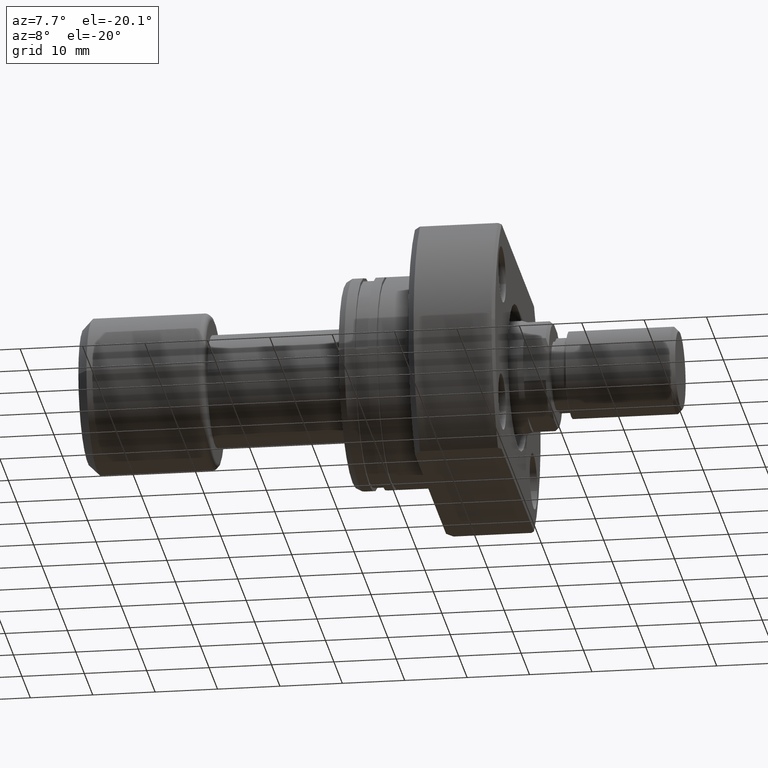
[diagram: clean part render]
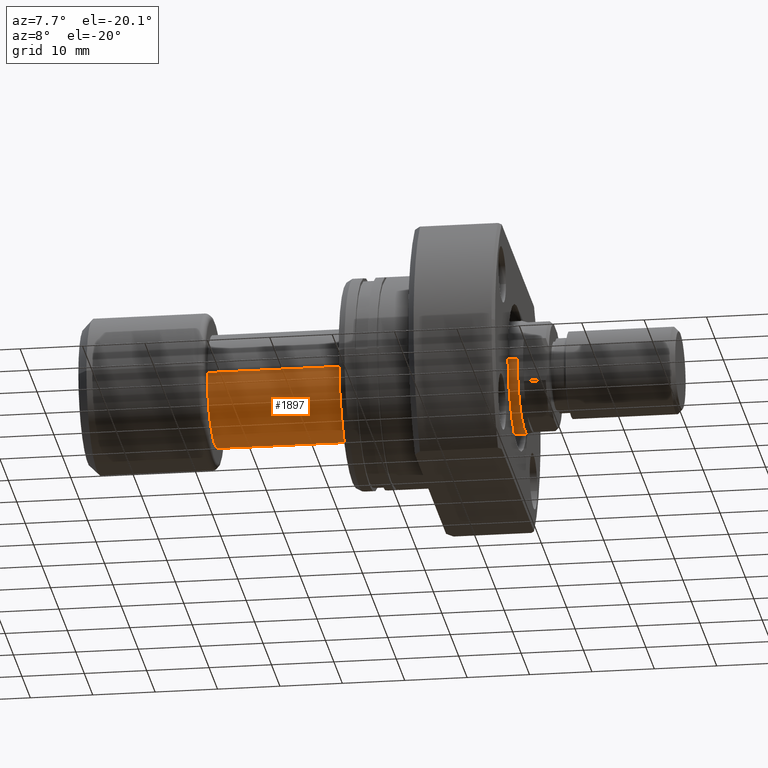
[diagram: same view with one face highlighted and labeled with its STEP entity id]
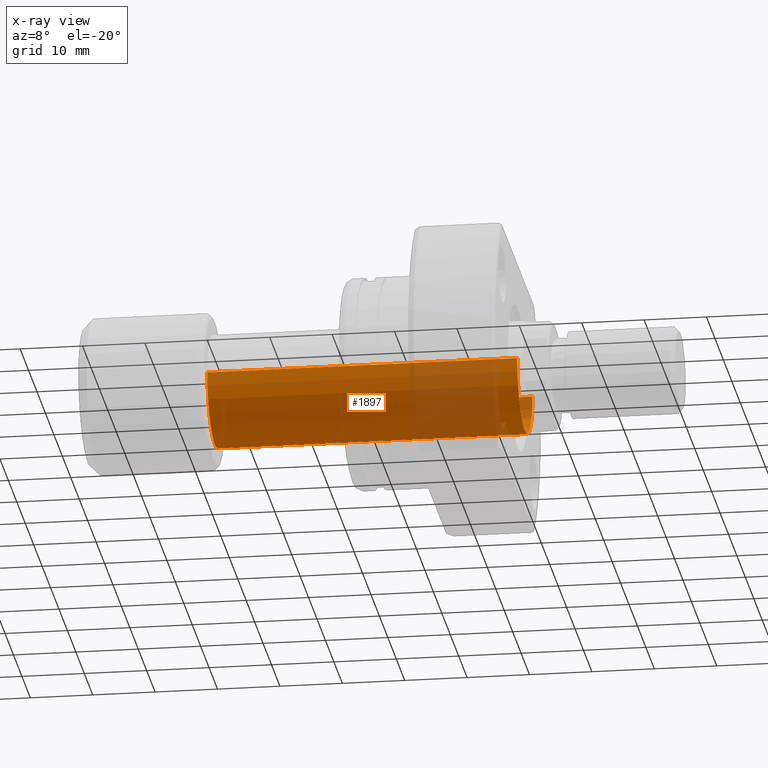
[diagram: x-ray of the same camera — body ghosted, the highlighted face saturated]
A machine part, auxiliary view. The second image highlights one B-rep face of the part: STEP entity #1897.
The next image is the same camera in x-ray: the body ghosted, the highlighted face saturated — about 30% of this face is hidden behind the body in this view.
In plain terms, the highlighted cylindrical surface (partial cylindrical patch) has radius 9 mm, axis along (-1, -0, -0).
Its self-contained STEP definition (entity closure, byte-faithful):
#83 = LINE ( 'NONE', #1502, #712 ) ;
#98 = VERTEX_POINT ( 'NONE', #2475 ) ;
#183 = CARTESIAN_POINT ( 'NONE',  ( -9.625880898621694358E-17, 9.000000000000094147, 1.102182119232629547E-15 ) ) ;
#370 = CARTESIAN_POINT ( 'NONE',  ( 70.06675751232378957, 9.000000000000190070, 1.102182119232641183E-15 ) ) ;
#476 = ORIENTED_EDGE ( 'NONE', *, *, #1014, .T. ) ;
#479 = DIRECTION ( 'NONE',  ( 1.069542322069065955E-17, -1.000000000000000000, 0.000000000000000000 ) ) ;
#494 = FACE_OUTER_BOUND ( 'NONE', #3593, .T. ) ;
#711 = VECTOR ( 'NONE', #2243, 1000.000000000000000 ) ;
#712 = VECTOR ( 'NONE', #2921, 1000.000000000000000 ) ;
#768 = DIRECTION ( 'NONE',  ( -1.000000000000000000, -1.069542322069065801E-17, -0.000000000000000000 ) ) ;
#834 = AXIS2_PLACEMENT_3D ( 'NONE', #1047, #768, #479 ) ;
#911 = DIRECTION ( 'NONE',  ( -1.000000000000000000, -1.069542322069065801E-17, -0.000000000000000000 ) ) ;
#1014 = EDGE_CURVE ( 'NONE', #2969, #98, #83, .T. ) ;
#1047 = CARTESIAN_POINT ( 'NONE',  ( 0.000000000000000000, 0.000000000000000000, 0.000000000000000000 ) ) ;
#1147 = CIRCLE ( 'NONE', #3206, 9.000000000000190070 ) ;
#1341 = LINE ( 'NONE', #183, #711 ) ;
#1395 = ORIENTED_EDGE ( 'NONE', *, *, #1945, .F. ) ;
#1462 = DIRECTION ( 'NONE',  ( -1.000000000000000000, -1.069542322069065801E-17, -0.000000000000000000 ) ) ;
#1502 = CARTESIAN_POINT ( 'NONE',  ( 9.625880898621694358E-17, -9.000000000000094147, 0.000000000000000000 ) ) ;
#1573 = VERTEX_POINT ( 'NONE', #370 ) ;
#1809 = AXIS2_PLACEMENT_3D ( 'NONE', #2249, #1462, #3377 ) ;
#1897 = ADVANCED_FACE ( 'NONE', ( #494 ), #1942, .T. ) ;
#1942 = CYLINDRICAL_SURFACE ( 'NONE', #834, 9.000000000000094147 ) ;
#1945 = EDGE_CURVE ( 'NONE', #1573, #2824, #1341, .T. ) ;
#2030 = CARTESIAN_POINT ( 'NONE',  ( 70.06675751232378957, 7.493936252958094024E-16, 0.000000000000000000 ) ) ;
#2239 = ORIENTED_EDGE ( 'NONE', *, *, #2589, .T. ) ;
#2243 = DIRECTION ( 'NONE',  ( -1.000000000000000000, -1.069542322069065801E-17, -0.000000000000000000 ) ) ;
#2249 = CARTESIAN_POINT ( 'NONE',  ( 20.39999999999999858, 2.181866337020894116E-16, 0.000000000000000000 ) ) ;
#2452 = EDGE_CURVE ( 'NONE', #2824, #98, #3267, .T. ) ;
#2475 = CARTESIAN_POINT ( 'NONE',  ( 20.39999999999999858, -9.000000000000000000, 0.000000000000000000 ) ) ;
#2589 = EDGE_CURVE ( 'NONE', #1573, #2969, #1147, .T. ) ;
#2824 = VERTEX_POINT ( 'NONE', #2963 ) ;
#2921 = DIRECTION ( 'NONE',  ( -1.000000000000000000, -1.069542322069065801E-17, -0.000000000000000000 ) ) ;
#2931 = DIRECTION ( 'NONE',  ( 0.000000000000000000, -1.000000000000000000, 0.000000000000000000 ) ) ;
#2963 = CARTESIAN_POINT ( 'NONE',  ( 20.39999999999999858, 9.000000000000000000, 1.102182119232623630E-15 ) ) ;
#2969 = VERTEX_POINT ( 'NONE', #3415 ) ;
#3155 = ORIENTED_EDGE ( 'NONE', *, *, #2452, .F. ) ;
#3206 = AXIS2_PLACEMENT_3D ( 'NONE', #2030, #911, #2931 ) ;
#3267 = CIRCLE ( 'NONE', #1809, 9.000000000000000000 ) ;
#3377 = DIRECTION ( 'NONE',  ( 0.000000000000000000, -1.000000000000000000, 0.000000000000000000 ) ) ;
#3415 = CARTESIAN_POINT ( 'NONE',  ( 70.06675751232378957, -9.000000000000190070, 0.000000000000000000 ) ) ;
#3593 = EDGE_LOOP ( 'NONE', ( #1395, #2239, #476, #3155 ) ) ;